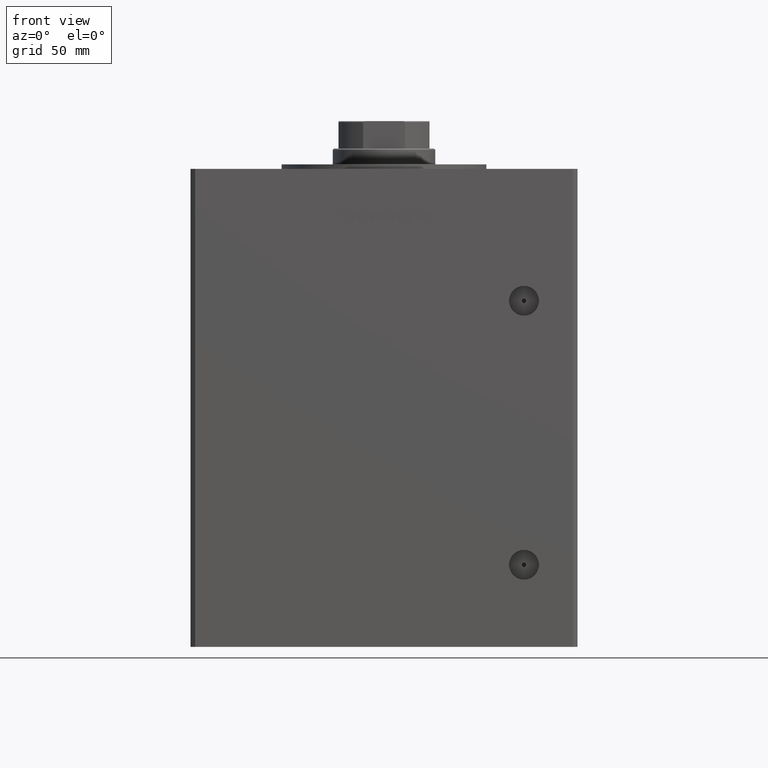
[diagram: clean part render]
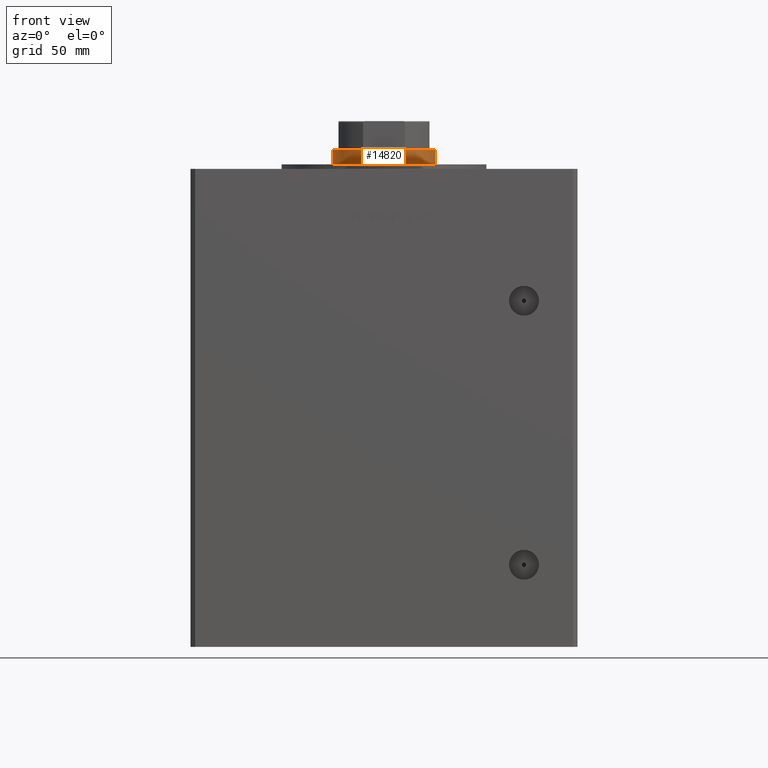
[diagram: same view with one face highlighted and labeled with its STEP entity id]
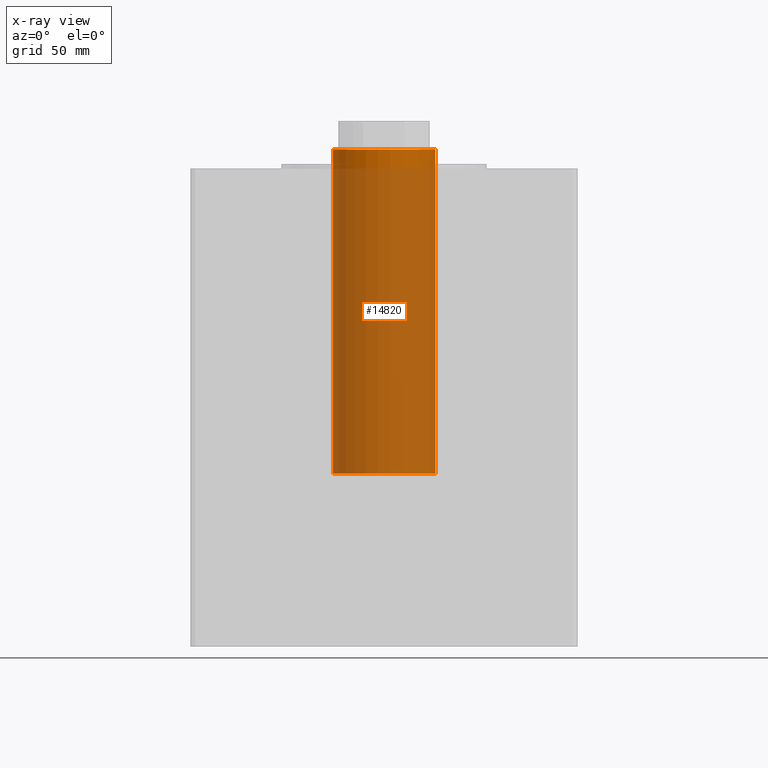
[diagram: x-ray of the same camera — body ghosted, the highlighted face saturated]
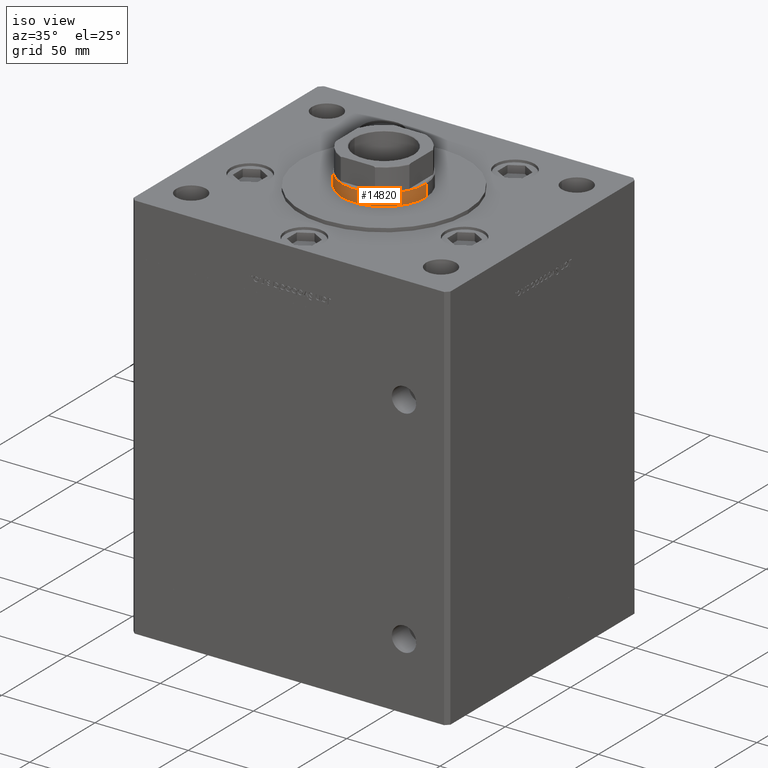
[diagram: same view with one face highlighted and labeled with its STEP entity id]
A machine part, front view. The second image highlights one B-rep face of the part: STEP entity #14820.
The next image is the same camera in x-ray: the body ghosted, the highlighted face saturated — about 94% of this face is hidden behind the body in this view.
A second angle (iso view) of the same face is appended — the face is thin or edge-on in the first view.
In plain terms, the highlighted cylindrical surface (partial cylindrical patch) has radius 22.5 mm, axis along (-0, -0, -1).
Its self-contained STEP definition (entity closure, byte-faithful):
#617 = ORIENTED_EDGE ( 'NONE', *, *, #28716, .F. ) ;
#1767 = VERTEX_POINT ( 'NONE', #24253 ) ;
#1897 = DIRECTION ( 'NONE',  ( 0.000000000000000000, 0.000000000000000000, 1.000000000000000000 ) ) ;
#5328 = CARTESIAN_POINT ( 'NONE',  ( 0.000000000000000000, 0.000000000000000000, 38.00000000000000000 ) ) ;
#5581 = CIRCLE ( 'NONE', #17359, 22.50000000000000355 ) ;
#6081 = DIRECTION ( 'NONE',  ( -0.000000000000000000, -0.000000000000000000, -1.000000000000000000 ) ) ;
#6246 = CARTESIAN_POINT ( 'NONE',  ( 0.000000000000000000, 0.000000000000000000, 181.0000000000000000 ) ) ;
#6502 = CYLINDRICAL_SURFACE ( 'NONE', #34628, 22.50000000000000355 ) ;
#6918 = CARTESIAN_POINT ( 'NONE',  ( -22.50000000000000355, 0.000000000000000000, 181.0000000000000000 ) ) ;
#9627 = VECTOR ( 'NONE', #6081, 1000.000000000000000 ) ;
#11543 = ORIENTED_EDGE ( 'NONE', *, *, #23011, .T. ) ;
#14000 = DIRECTION ( 'NONE',  ( 1.000000000000000000, 0.000000000000000000, 0.000000000000000000 ) ) ;
#14255 = ORIENTED_EDGE ( 'NONE', *, *, #39883, .T. ) ;
#14820 = ADVANCED_FACE ( 'NONE', ( #50250 ), #6502, .T. ) ;
#17359 = AXIS2_PLACEMENT_3D ( 'NONE', #18958, #46873, #27390 ) ;
#17665 = VERTEX_POINT ( 'NONE', #36136 ) ;
#18958 = CARTESIAN_POINT ( 'NONE',  ( 0.000000000000000000, 0.000000000000000000, 180.5000000000000000 ) ) ;
#22609 = DIRECTION ( 'NONE',  ( -0.000000000000000000, -0.000000000000000000, -1.000000000000000000 ) ) ;
#23011 = EDGE_CURVE ( 'NONE', #17665, #50714, #42360, .T. ) ;
#23613 = CARTESIAN_POINT ( 'NONE',  ( 22.50000000000000355, 2.755455298081545172E-15, 38.00000000000000000 ) ) ;
#24253 = CARTESIAN_POINT ( 'NONE',  ( 22.50000000000000355, 2.755455298081545172E-15, 180.5000000000000000 ) ) ;
#27390 = DIRECTION ( 'NONE',  ( 1.000000000000000000, 0.000000000000000000, 0.000000000000000000 ) ) ;
#28111 = AXIS2_PLACEMENT_3D ( 'NONE', #5328, #1897, #14000 ) ;
#28716 = EDGE_CURVE ( 'NONE', #1767, #50714, #33513, .T. ) ;
#32321 = EDGE_LOOP ( 'NONE', ( #617, #45319, #14255, #11543 ) ) ;
#33513 = LINE ( 'NONE', #45867, #9627 ) ;
#34182 = EDGE_CURVE ( 'NONE', #1767, #41672, #5581, .T. ) ;
#34628 = AXIS2_PLACEMENT_3D ( 'NONE', #6246, #22609, #41826 ) ;
#36136 = CARTESIAN_POINT ( 'NONE',  ( -22.50000000000000355, 0.000000000000000000, 38.00000000000000000 ) ) ;
#36498 = CARTESIAN_POINT ( 'NONE',  ( -22.50000000000000355, 0.000000000000000000, 180.5000000000000000 ) ) ;
#39883 = EDGE_CURVE ( 'NONE', #41672, #17665, #43007, .T. ) ;
#41672 = VERTEX_POINT ( 'NONE', #36498 ) ;
#41826 = DIRECTION ( 'NONE',  ( -1.000000000000000000, 0.000000000000000000, 0.000000000000000000 ) ) ;
#42360 = CIRCLE ( 'NONE', #28111, 22.50000000000000355 ) ;
#43007 = LINE ( 'NONE', #6918, #46937 ) ;
#43273 = DIRECTION ( 'NONE',  ( -0.000000000000000000, -0.000000000000000000, -1.000000000000000000 ) ) ;
#45319 = ORIENTED_EDGE ( 'NONE', *, *, #34182, .T. ) ;
#45867 = CARTESIAN_POINT ( 'NONE',  ( 22.50000000000000355, 2.755455298081545172E-15, 181.0000000000000000 ) ) ;
#46873 = DIRECTION ( 'NONE',  ( 0.000000000000000000, 0.000000000000000000, -1.000000000000000000 ) ) ;
#46937 = VECTOR ( 'NONE', #43273, 1000.000000000000000 ) ;
#50250 = FACE_OUTER_BOUND ( 'NONE', #32321, .T. ) ;
#50714 = VERTEX_POINT ( 'NONE', #23613 ) ;